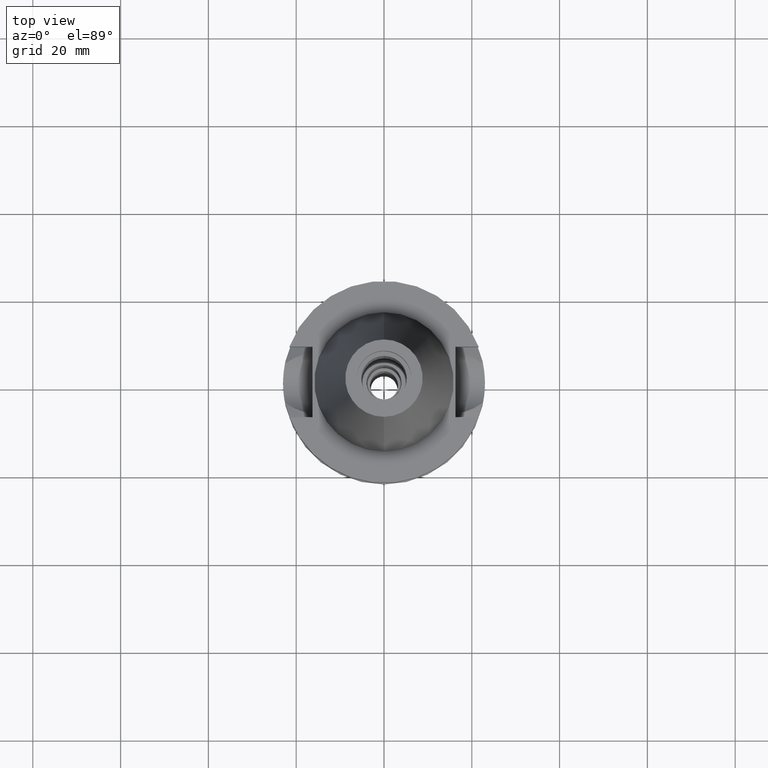
[diagram: clean part render]
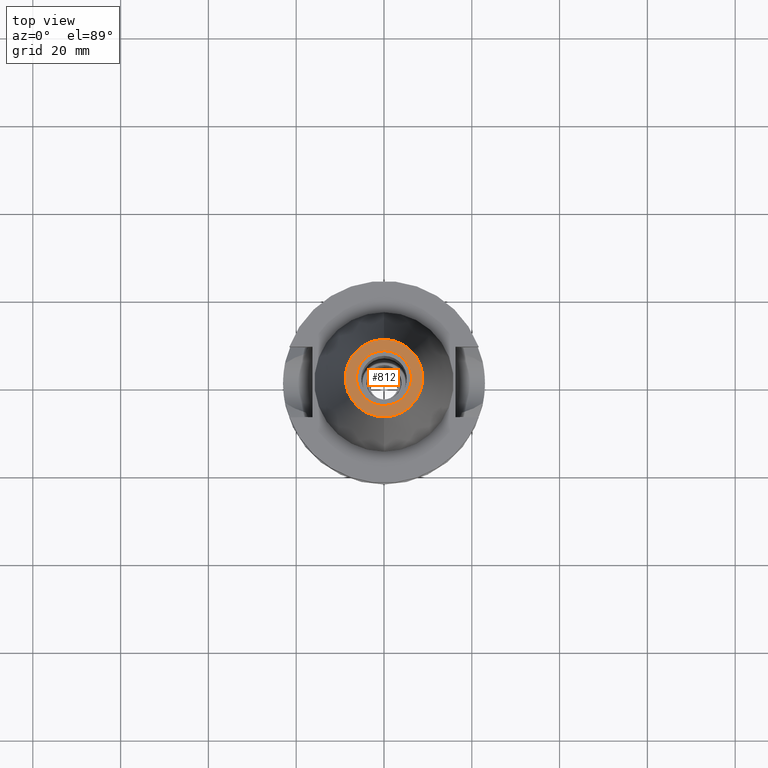
[diagram: same view with one face highlighted and labeled with its STEP entity id]
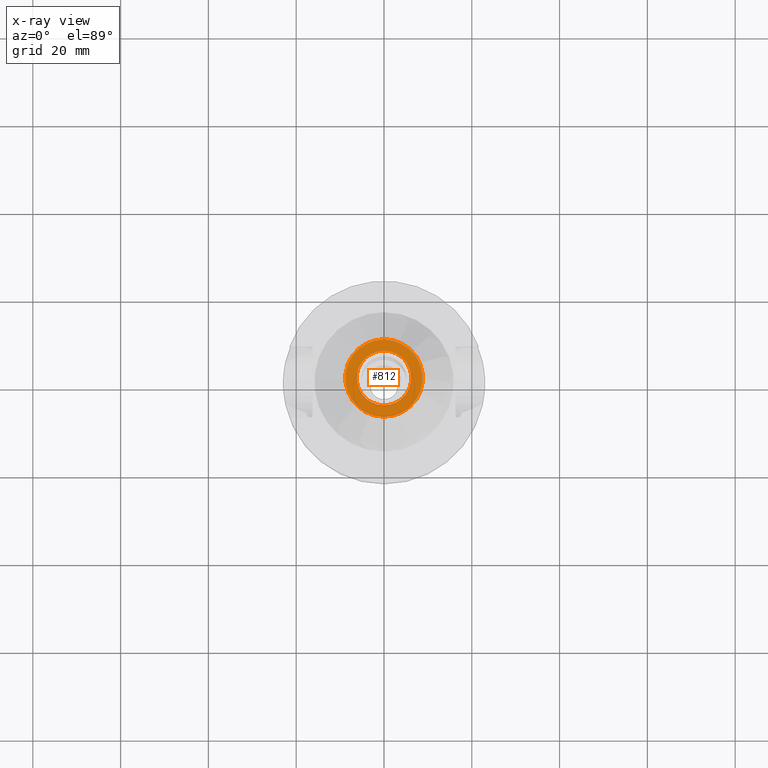
[diagram: x-ray of the same camera — body ghosted, the highlighted face saturated]
A machine part, top view. The second image highlights one B-rep face of the part: STEP entity #812.
The next image is the same camera in x-ray: the body ghosted, the highlighted face saturated — about 0% of this face is hidden behind the body in this view.
In plain terms, the highlighted planar face has unit normal (0, 0, -1).
Its self-contained STEP definition (entity closure, byte-faithful):
#1 = DIRECTION ( 'NONE',  ( 0.0000000000000000000, 0.0000000000000000000, -1.000000000000000000 ) ) ;
#14 = CIRCLE ( 'NONE', #154, 8.816791732783000768 ) ;
#23 = DIRECTION ( 'NONE',  ( 0.0000000000000000000, 0.0000000000000000000, 1.000000000000000000 ) ) ;
#129 = AXIS2_PLACEMENT_3D ( 'NONE', #1783, #1, #1356 ) ;
#154 = AXIS2_PLACEMENT_3D ( 'NONE', #526, #273, #2333 ) ;
#255 = VERTEX_POINT ( 'NONE', #1670 ) ;
#273 = DIRECTION ( 'NONE',  ( 0.0000000000000000000, 0.0000000000000000000, -1.000000000000000000 ) ) ;
#324 = DIRECTION ( 'NONE',  ( 0.0000000000000000000, 1.000000000000000000, 0.0000000000000000000 ) ) ;
#351 = ORIENTED_EDGE ( 'NONE', *, *, #1450, .F. ) ;
#366 = PLANE ( 'NONE',  #1860 ) ;
#526 = CARTESIAN_POINT ( 'NONE',  ( 0.0000000000000000000, 1.521011324540999938E-14, 48.39999999999999858 ) ) ;
#562 = CARTESIAN_POINT ( 'NONE',  ( 0.0000000000000000000, 6.250000000000000000, 48.39999999999999858 ) ) ;
#569 = VERTEX_POINT ( 'NONE', #2708 ) ;
#608 = CIRCLE ( 'NONE', #129, 8.816791732783000768 ) ;
#619 = EDGE_CURVE ( 'NONE', #857, #2002, #2651, .T. ) ;
#812 = ADVANCED_FACE ( 'NONE', ( #2187, #1023 ), #366, .F. ) ;
#857 = VERTEX_POINT ( 'NONE', #2622 ) ;
#926 = EDGE_LOOP ( 'NONE', ( #351, #1845 ) ) ;
#1022 = EDGE_CURVE ( 'NONE', #255, #569, #608, .T. ) ;
#1023 = FACE_BOUND ( 'NONE', #926, .T. ) ;
#1033 = DIRECTION ( 'NONE',  ( 0.0000000000000000000, -1.000000000000000000, 0.0000000000000000000 ) ) ;
#1278 = CARTESIAN_POINT ( 'NONE',  ( 0.0000000000000000000, 1.817375849934999910E-14, 48.39999999999999858 ) ) ;
#1356 = DIRECTION ( 'NONE',  ( 0.0000000000000000000, 1.000000000000000000, 0.0000000000000000000 ) ) ;
#1370 = CIRCLE ( 'NONE', #2743, 6.250000000000000000 ) ;
#1450 = EDGE_CURVE ( 'NONE', #2002, #857, #1370, .T. ) ;
#1593 = CARTESIAN_POINT ( 'NONE',  ( 0.0000000000000000000, 1.908856965831000054E-14, 48.39999999999999858 ) ) ;
#1619 = ORIENTED_EDGE ( 'NONE', *, *, #2946, .F. ) ;
#1670 = CARTESIAN_POINT ( 'NONE',  ( 0.0000000000000000000, 8.816791732783000768, 48.39999999999999858 ) ) ;
#1783 = CARTESIAN_POINT ( 'NONE',  ( 0.0000000000000000000, 1.521011324540999938E-14, 48.39999999999999858 ) ) ;
#1845 = ORIENTED_EDGE ( 'NONE', *, *, #619, .F. ) ;
#1860 = AXIS2_PLACEMENT_3D ( 'NONE', #1278, #1965, #1033 ) ;
#1910 = AXIS2_PLACEMENT_3D ( 'NONE', #1593, #23, #2314 ) ;
#1965 = DIRECTION ( 'NONE',  ( 0.0000000000000000000, 0.0000000000000000000, -1.000000000000000000 ) ) ;
#2002 = VERTEX_POINT ( 'NONE', #562 ) ;
#2187 = FACE_OUTER_BOUND ( 'NONE', #2781, .T. ) ;
#2314 = DIRECTION ( 'NONE',  ( 0.0000000000000000000, -1.000000000000000000, 0.0000000000000000000 ) ) ;
#2333 = DIRECTION ( 'NONE',  ( 0.0000000000000000000, -1.000000000000000000, 0.0000000000000000000 ) ) ;
#2622 = CARTESIAN_POINT ( 'NONE',  ( 0.0000000000000000000, -6.250000000000000000, 48.39999999999999858 ) ) ;
#2651 = CIRCLE ( 'NONE', #1910, 6.250000000000000000 ) ;
#2708 = CARTESIAN_POINT ( 'NONE',  ( 0.0000000000000000000, -8.816791732783000768, 48.39999999999999858 ) ) ;
#2743 = AXIS2_PLACEMENT_3D ( 'NONE', #2819, #2784, #324 ) ;
#2781 = EDGE_LOOP ( 'NONE', ( #2782, #1619 ) ) ;
#2782 = ORIENTED_EDGE ( 'NONE', *, *, #1022, .F. ) ;
#2784 = DIRECTION ( 'NONE',  ( 0.0000000000000000000, 0.0000000000000000000, 1.000000000000000000 ) ) ;
#2819 = CARTESIAN_POINT ( 'NONE',  ( 0.0000000000000000000, 1.908856965831000054E-14, 48.39999999999999858 ) ) ;
#2946 = EDGE_CURVE ( 'NONE', #569, #255, #14, .T. ) ;